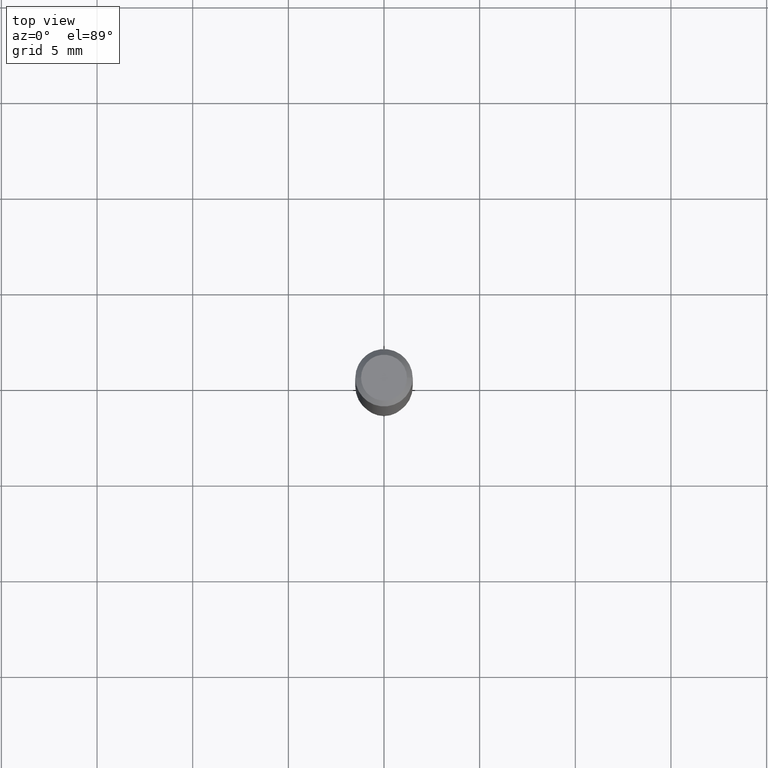
[diagram: clean part render]
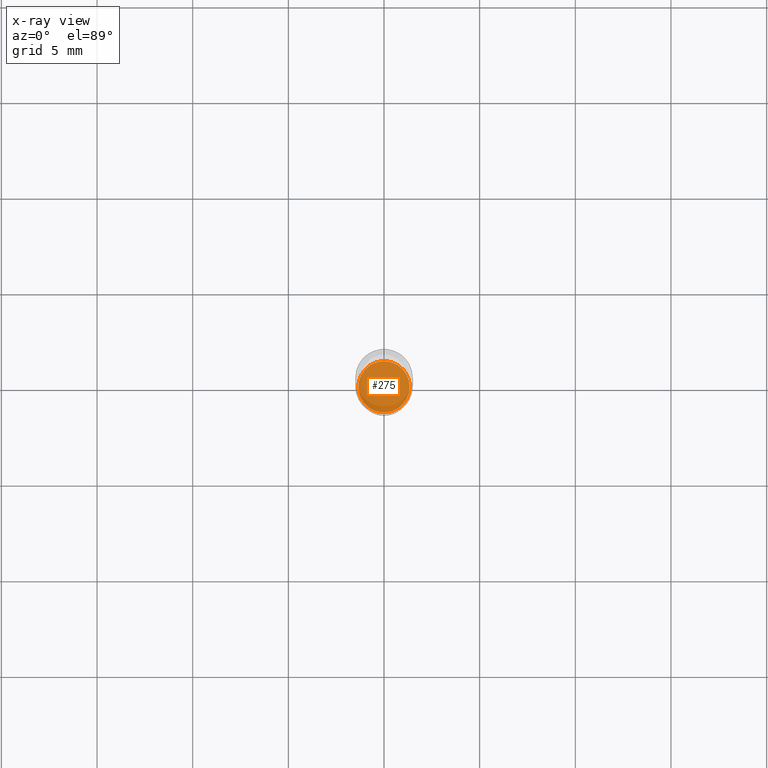
[diagram: x-ray — body ghosted, one internal face saturated and labeled with its STEP entity id]
A machine part, top view, then the same camera in x-ray: the body is ghosted and one INTERNAL B-rep face — a face not visible from any outside direction — is saturated and labeled: STEP entity #275.
In plain terms, the highlighted planar face has unit normal (-0, 0, 1).
Its self-contained STEP definition (entity closure, byte-faithful):
#5 = AXIS2_PLACEMENT_3D ( 'NONE', #222, #178, #218 ) ;
#7 = DIRECTION ( 'NONE',  ( -2.445468806185136597E-29, 3.491481338843145583E-15, 1.000000000000000000 ) ) ;
#23 = CIRCLE ( 'NONE', #113, 0.05285000000000000114 ) ;
#27 = ORIENTED_EDGE ( 'NONE', *, *, #338, .F. ) ;
#48 = AXIS2_PLACEMENT_3D ( 'NONE', #267, #7, #271 ) ;
#75 = FACE_OUTER_BOUND ( 'NONE', #288, .T. ) ;
#113 = AXIS2_PLACEMENT_3D ( 'NONE', #353, #120, #227 ) ;
#120 = DIRECTION ( 'NONE',  ( -2.445468806185136597E-29, 3.491481338843145583E-15, 1.000000000000000000 ) ) ;
#134 = ORIENTED_EDGE ( 'NONE', *, *, #340, .F. ) ;
#175 = VERTEX_POINT ( 'NONE', #481 ) ;
#178 = DIRECTION ( 'NONE',  ( -2.438088387897960049E-29, 3.491481338843145188E-15, 1.000000000000000000 ) ) ;
#218 = DIRECTION ( 'NONE',  ( 1.000000000000000000, -6.982962677686265922E-15, 4.876176775795935793E-29 ) ) ;
#222 = CARTESIAN_POINT ( 'NONE',  ( 7.012475686570645720E-30, -6.650194186352977832E-15, -1.094500000000000028 ) ) ;
#227 = DIRECTION ( 'NONE',  ( 1.000000000000000000, -6.982962677686267499E-15, 0.000000000000000000 ) ) ;
#260 = PLANE ( 'NONE',  #5 ) ;
#267 = CARTESIAN_POINT ( 'NONE',  ( 2.676565608369632355E-29, -3.821426325363822773E-15, -1.094500000000000028 ) ) ;
#271 = DIRECTION ( 'NONE',  ( 1.000000000000000000, -6.982962677686267499E-15, 0.000000000000000000 ) ) ;
#275 = ADVANCED_FACE ( 'NONE', ( #75 ), #260, .F. ) ;
#288 = EDGE_LOOP ( 'NONE', ( #27, #134 ) ) ;
#329 = CIRCLE ( 'NONE', #48, 0.05285000000000000114 ) ;
#338 = EDGE_CURVE ( 'NONE', #360, #175, #329, .T. ) ;
#340 = EDGE_CURVE ( 'NONE', #175, #360, #23, .T. ) ;
#353 = CARTESIAN_POINT ( 'NONE',  ( 2.676565608369632355E-29, -3.821426325363822773E-15, -1.094500000000000028 ) ) ;
#360 = VERTEX_POINT ( 'NONE', #455 ) ;
#455 = CARTESIAN_POINT ( 'NONE',  ( 0.05285000000000000114, -4.190475902879542038E-15, -1.094500000000000028 ) ) ;
#481 = CARTESIAN_POINT ( 'NONE',  ( -0.05285000000000000114, -3.443255262340498567E-15, -1.094500000000000028 ) ) ;